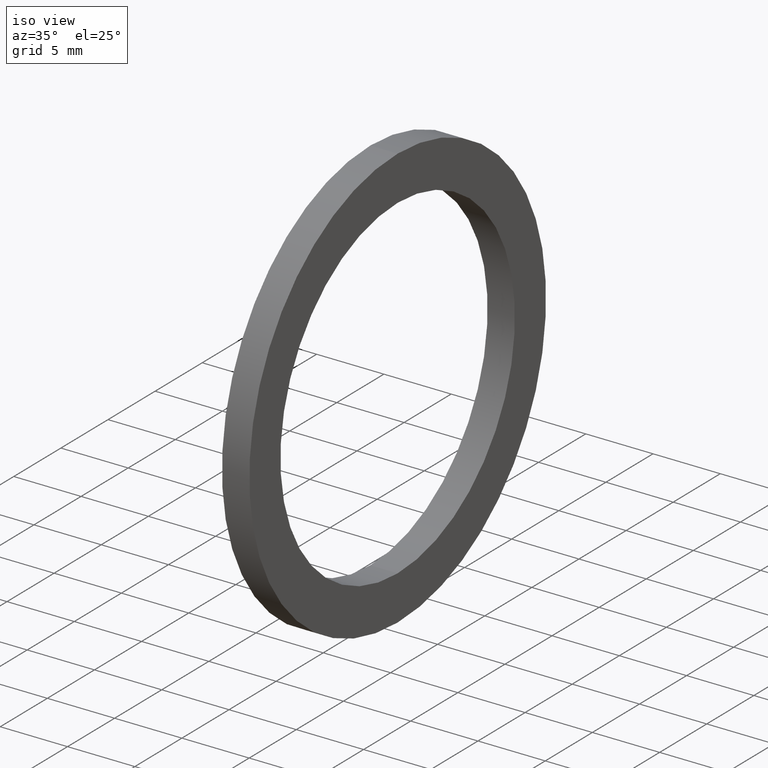
[diagram: clean part render]
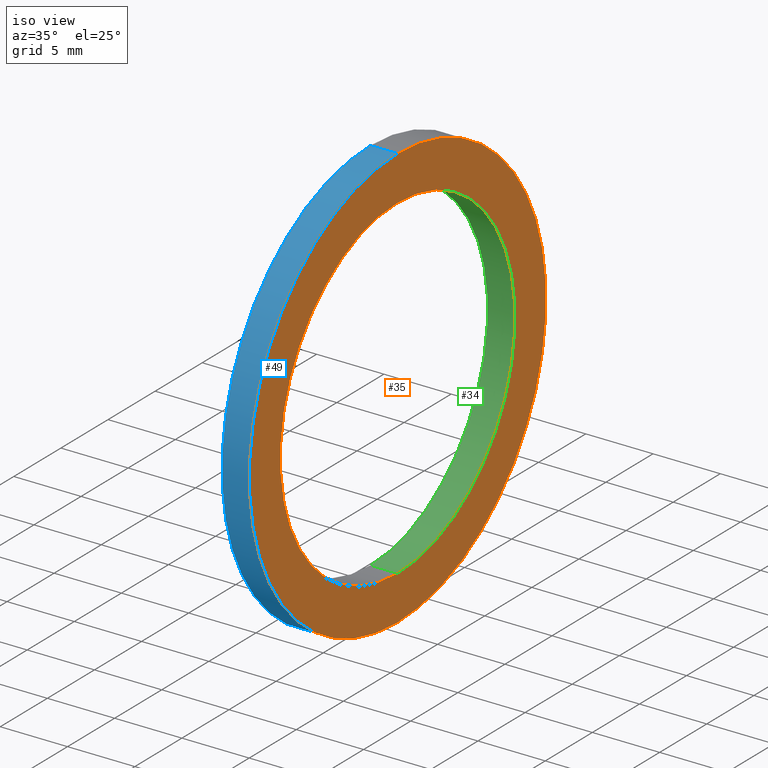
[diagram: same view with three faces highlighted in distinct colors, each labeled with its STEP entity id]
A machine part, iso view with three faces highlighted in distinct colors.
Their STEP definitions:

[orange] entity #35 — the highlighted planar face has unit normal (1, 0, 0).
#2 = VERTEX_POINT ( 'NONE', #59 ) ;
#3 = EDGE_CURVE ( 'NONE', #4, #2, #68, .T. ) ;
#4 = VERTEX_POINT ( 'NONE', #65 ) ;
#32 = EDGE_LOOP ( 'NONE', ( #41, #42 ) ) ;
#35 = ADVANCED_FACE ( 'NONE', ( #122, #117 ), #116, .T. ) ;
#39 = EDGE_CURVE ( 'NONE', #2, #4, #106, .T. ) ;
#41 = ORIENTED_EDGE ( 'NONE', *, *, #3, .F. ) ;
#42 = ORIENTED_EDGE ( 'NONE', *, *, #39, .F. ) ;
#43 = EDGE_CURVE ( 'NONE', #53, #62, #71, .T. ) ;
#44 = ORIENTED_EDGE ( 'NONE', *, *, #57, .T. ) ;
#50 = EDGE_LOOP ( 'NONE', ( #51, #44 ) ) ;
#51 = ORIENTED_EDGE ( 'NONE', *, *, #43, .T. ) ;
#53 = VERTEX_POINT ( 'NONE', #146 ) ;
#56 = CARTESIAN_POINT ( 'NONE',  ( 0.07999999999999996000, 0.0000000000000000000, 0.0000000000000000000 ) ) ;
#57 = EDGE_CURVE ( 'NONE', #62, #53, #177, .T. ) ;
#59 = CARTESIAN_POINT ( 'NONE',  ( 0.07999999999999996000, 7.592810154713589100E-017, -0.6200000000000000000 ) ) ;
#62 = VERTEX_POINT ( 'NONE', #171 ) ;
#64 = DIRECTION ( 'NONE',  ( 0.0000000000000000000, 0.0000000000000000000, 1.000000000000000000 ) ) ;
#65 = CARTESIAN_POINT ( 'NONE',  ( 0.07999999999999996000, 0.0000000000000000000, 0.6200000000000000000 ) ) ;
#66 = DIRECTION ( 'NONE',  ( -1.000000000000000000, 0.0000000000000000000, 0.0000000000000000000 ) ) ;
#68 = CIRCLE ( 'NONE', #77, 0.6200000000000000000 ) ;
#70 = AXIS2_PLACEMENT_3D ( 'NONE', #56, #78, #79 ) ;
#71 = CIRCLE ( 'NONE', #70, 0.4899999999999999900 ) ;
#75 = CARTESIAN_POINT ( 'NONE',  ( 0.07999999999999996000, 0.0000000000000000000, 0.0000000000000000000 ) ) ;
#77 = AXIS2_PLACEMENT_3D ( 'NONE', #75, #66, #64 ) ;
#78 = DIRECTION ( 'NONE',  ( -1.000000000000000000, 0.0000000000000000000, 0.0000000000000000000 ) ) ;
#79 = DIRECTION ( 'NONE',  ( 0.0000000000000000000, 0.0000000000000000000, 1.000000000000000000 ) ) ;
#102 = DIRECTION ( 'NONE',  ( 0.0000000000000000000, 0.0000000000000000000, 1.000000000000000000 ) ) ;
#103 = DIRECTION ( 'NONE',  ( -1.000000000000000000, 0.0000000000000000000, 0.0000000000000000000 ) ) ;
#104 = CARTESIAN_POINT ( 'NONE',  ( 0.07999999999999996000, 0.0000000000000000000, 0.0000000000000000000 ) ) ;
#105 = AXIS2_PLACEMENT_3D ( 'NONE', #104, #103, #102 ) ;
#106 = CIRCLE ( 'NONE', #105, 0.6200000000000000000 ) ;
#112 = DIRECTION ( 'NONE',  ( 0.0000000000000000000, 0.0000000000000000000, -1.000000000000000000 ) ) ;
#113 = DIRECTION ( 'NONE',  ( 1.000000000000000000, 0.0000000000000000000, 0.0000000000000000000 ) ) ;
#114 = CARTESIAN_POINT ( 'NONE',  ( 0.08000000000000002900, -0.4899999999999999900, 0.0000000000000000000 ) ) ;
#115 = AXIS2_PLACEMENT_3D ( 'NONE', #114, #113, #112 ) ;
#116 = PLANE ( 'NONE',  #115 ) ;
#117 = FACE_OUTER_BOUND ( 'NONE', #32, .T. ) ;
#122 = FACE_BOUND ( 'NONE', #50, .T. ) ;
#146 = CARTESIAN_POINT ( 'NONE',  ( 0.07999999999999996000, 0.0000000000000000000, 0.4899999999999999900 ) ) ;
#171 = CARTESIAN_POINT ( 'NONE',  ( 0.07999999999999996000, 6.000769315822029800E-017, -0.4899999999999999900 ) ) ;
#173 = DIRECTION ( 'NONE',  ( 0.0000000000000000000, 0.0000000000000000000, 1.000000000000000000 ) ) ;
#174 = DIRECTION ( 'NONE',  ( -1.000000000000000000, 0.0000000000000000000, 0.0000000000000000000 ) ) ;
#175 = CARTESIAN_POINT ( 'NONE',  ( 0.07999999999999996000, 0.0000000000000000000, 0.0000000000000000000 ) ) ;
#176 = AXIS2_PLACEMENT_3D ( 'NONE', #175, #174, #173 ) ;
#177 = CIRCLE ( 'NONE', #176, 0.4899999999999999900 ) ;

[blue] entity #49 — the highlighted cylindrical surface (partial cylindrical patch) has radius 15.748 mm, axis along (-1, 0, 0).
#2 = VERTEX_POINT ( 'NONE', #59 ) ;
#4 = VERTEX_POINT ( 'NONE', #65 ) ;
#12 = EDGE_CURVE ( 'NONE', #2, #13, #87, .T. ) ;
#13 = VERTEX_POINT ( 'NONE', #94 ) ;
#16 = VERTEX_POINT ( 'NONE', #88 ) ;
#19 = EDGE_CURVE ( 'NONE', #4, #16, #98, .T. ) ;
#26 = EDGE_CURVE ( 'NONE', #13, #16, #132, .T. ) ;
#30 = ORIENTED_EDGE ( 'NONE', *, *, #26, .F. ) ;
#33 = ORIENTED_EDGE ( 'NONE', *, *, #12, .F. ) ;
#39 = EDGE_CURVE ( 'NONE', #2, #4, #106, .T. ) ;
#40 = EDGE_LOOP ( 'NONE', ( #33, #52, #45, #30 ) ) ;
#45 = ORIENTED_EDGE ( 'NONE', *, *, #19, .T. ) ;
#49 = ADVANCED_FACE ( 'NONE', ( #165 ), #145, .T. ) ;
#52 = ORIENTED_EDGE ( 'NONE', *, *, #39, .T. ) ;
#58 = DIRECTION ( 'NONE',  ( -1.000000000000000000, 0.0000000000000000000, 0.0000000000000000000 ) ) ;
#59 = CARTESIAN_POINT ( 'NONE',  ( 0.07999999999999996000, 7.592810154713589100E-017, -0.6200000000000000000 ) ) ;
#65 = CARTESIAN_POINT ( 'NONE',  ( 0.07999999999999996000, 0.0000000000000000000, 0.6200000000000000000 ) ) ;
#85 = VECTOR ( 'NONE', #58, 39.37007874015748100 ) ;
#86 = CARTESIAN_POINT ( 'NONE',  ( -1.721125226614714300, 7.592810154713589100E-017, -0.6200000000000000000 ) ) ;
#87 = LINE ( 'NONE', #86, #85 ) ;
#88 = CARTESIAN_POINT ( 'NONE',  ( 0.0000000000000000000, 0.0000000000000000000, 0.6200000000000000000 ) ) ;
#94 = CARTESIAN_POINT ( 'NONE',  ( 0.0000000000000000000, 7.592810154713589100E-017, -0.6200000000000000000 ) ) ;
#95 = DIRECTION ( 'NONE',  ( -1.000000000000000000, 0.0000000000000000000, 0.0000000000000000000 ) ) ;
#96 = VECTOR ( 'NONE', #95, 39.37007874015748100 ) ;
#97 = CARTESIAN_POINT ( 'NONE',  ( -1.721125226614714300, 0.0000000000000000000, 0.6200000000000000000 ) ) ;
#98 = LINE ( 'NONE', #97, #96 ) ;
#102 = DIRECTION ( 'NONE',  ( 0.0000000000000000000, 0.0000000000000000000, 1.000000000000000000 ) ) ;
#103 = DIRECTION ( 'NONE',  ( -1.000000000000000000, 0.0000000000000000000, 0.0000000000000000000 ) ) ;
#104 = CARTESIAN_POINT ( 'NONE',  ( 0.07999999999999996000, 0.0000000000000000000, 0.0000000000000000000 ) ) ;
#105 = AXIS2_PLACEMENT_3D ( 'NONE', #104, #103, #102 ) ;
#106 = CIRCLE ( 'NONE', #105, 0.6200000000000000000 ) ;
#129 = DIRECTION ( 'NONE',  ( 0.0000000000000000000, 0.0000000000000000000, 1.000000000000000000 ) ) ;
#130 = DIRECTION ( 'NONE',  ( -1.000000000000000000, 0.0000000000000000000, 0.0000000000000000000 ) ) ;
#131 = AXIS2_PLACEMENT_3D ( 'NONE', #138, #130, #129 ) ;
#132 = CIRCLE ( 'NONE', #131, 0.6200000000000000000 ) ;
#138 = CARTESIAN_POINT ( 'NONE',  ( 0.0000000000000000000, 0.0000000000000000000, 0.0000000000000000000 ) ) ;
#144 = AXIS2_PLACEMENT_3D ( 'NONE', #166, #180, #179 ) ;
#145 = CYLINDRICAL_SURFACE ( 'NONE', #144, 0.6200000000000000000 ) ;
#165 = FACE_OUTER_BOUND ( 'NONE', #40, .T. ) ;
#166 = CARTESIAN_POINT ( 'NONE',  ( -1.721125226614714300, 0.0000000000000000000, 0.0000000000000000000 ) ) ;
#179 = DIRECTION ( 'NONE',  ( 0.0000000000000000000, 0.0000000000000000000, 1.000000000000000000 ) ) ;
#180 = DIRECTION ( 'NONE',  ( -1.000000000000000000, 0.0000000000000000000, 0.0000000000000000000 ) ) ;

[green] entity #34 — the highlighted cylindrical surface (partial cylindrical patch) has radius 12.446 mm, axis along (-1, 0, 0).
#8 = VERTEX_POINT ( 'NONE', #84 ) ;
#10 = EDGE_CURVE ( 'NONE', #53, #8, #83, .T. ) ;
#17 = ORIENTED_EDGE ( 'NONE', *, *, #43, .F. ) ;
#24 = ORIENTED_EDGE ( 'NONE', *, *, #10, .T. ) ;
#27 = ORIENTED_EDGE ( 'NONE', *, *, #47, .T. ) ;
#28 = EDGE_LOOP ( 'NONE', ( #29, #17, #24, #27 ) ) ;
#29 = ORIENTED_EDGE ( 'NONE', *, *, #36, .F. ) ;
#34 = ADVANCED_FACE ( 'NONE', ( #124 ), #123, .F. ) ;
#36 = EDGE_CURVE ( 'NONE', #62, #38, #111, .T. ) ;
#38 = VERTEX_POINT ( 'NONE', #107 ) ;
#43 = EDGE_CURVE ( 'NONE', #53, #62, #71, .T. ) ;
#47 = EDGE_CURVE ( 'NONE', #8, #38, #149, .T. ) ;
#53 = VERTEX_POINT ( 'NONE', #146 ) ;
#56 = CARTESIAN_POINT ( 'NONE',  ( 0.07999999999999996000, 0.0000000000000000000, 0.0000000000000000000 ) ) ;
#62 = VERTEX_POINT ( 'NONE', #171 ) ;
#70 = AXIS2_PLACEMENT_3D ( 'NONE', #56, #78, #79 ) ;
#71 = CIRCLE ( 'NONE', #70, 0.4899999999999999900 ) ;
#78 = DIRECTION ( 'NONE',  ( -1.000000000000000000, 0.0000000000000000000, 0.0000000000000000000 ) ) ;
#79 = DIRECTION ( 'NONE',  ( 0.0000000000000000000, 0.0000000000000000000, 1.000000000000000000 ) ) ;
#80 = DIRECTION ( 'NONE',  ( -1.000000000000000000, 0.0000000000000000000, 0.0000000000000000000 ) ) ;
#81 = VECTOR ( 'NONE', #80, 39.37007874015748100 ) ;
#82 = CARTESIAN_POINT ( 'NONE',  ( -1.721125226614714300, 0.0000000000000000000, 0.4899999999999999900 ) ) ;
#83 = LINE ( 'NONE', #82, #81 ) ;
#84 = CARTESIAN_POINT ( 'NONE',  ( 0.0000000000000000000, 0.0000000000000000000, 0.4899999999999999900 ) ) ;
#107 = CARTESIAN_POINT ( 'NONE',  ( 0.0000000000000000000, 6.000769315822029800E-017, -0.4899999999999999900 ) ) ;
#108 = DIRECTION ( 'NONE',  ( -1.000000000000000000, 0.0000000000000000000, 0.0000000000000000000 ) ) ;
#109 = VECTOR ( 'NONE', #108, 39.37007874015748100 ) ;
#110 = CARTESIAN_POINT ( 'NONE',  ( -1.721125226614714300, 6.000769315822029800E-017, -0.4899999999999999900 ) ) ;
#111 = LINE ( 'NONE', #110, #109 ) ;
#118 = DIRECTION ( 'NONE',  ( 0.0000000000000000000, 0.0000000000000000000, 1.000000000000000000 ) ) ;
#119 = DIRECTION ( 'NONE',  ( -1.000000000000000000, 0.0000000000000000000, 0.0000000000000000000 ) ) ;
#120 = CARTESIAN_POINT ( 'NONE',  ( -1.721125226614714300, 0.0000000000000000000, 0.0000000000000000000 ) ) ;
#121 = AXIS2_PLACEMENT_3D ( 'NONE', #120, #119, #118 ) ;
#123 = CYLINDRICAL_SURFACE ( 'NONE', #121, 0.4899999999999999900 ) ;
#124 = FACE_OUTER_BOUND ( 'NONE', #28, .T. ) ;
#146 = CARTESIAN_POINT ( 'NONE',  ( 0.07999999999999996000, 0.0000000000000000000, 0.4899999999999999900 ) ) ;
#147 = CARTESIAN_POINT ( 'NONE',  ( 0.0000000000000000000, 0.0000000000000000000, 0.0000000000000000000 ) ) ;
#148 = AXIS2_PLACEMENT_3D ( 'NONE', #147, #168, #167 ) ;
#149 = CIRCLE ( 'NONE', #148, 0.4899999999999999900 ) ;
#167 = DIRECTION ( 'NONE',  ( 0.0000000000000000000, 0.0000000000000000000, 1.000000000000000000 ) ) ;
#168 = DIRECTION ( 'NONE',  ( -1.000000000000000000, 0.0000000000000000000, 0.0000000000000000000 ) ) ;
#171 = CARTESIAN_POINT ( 'NONE',  ( 0.07999999999999996000, 6.000769315822029800E-017, -0.4899999999999999900 ) ) ;